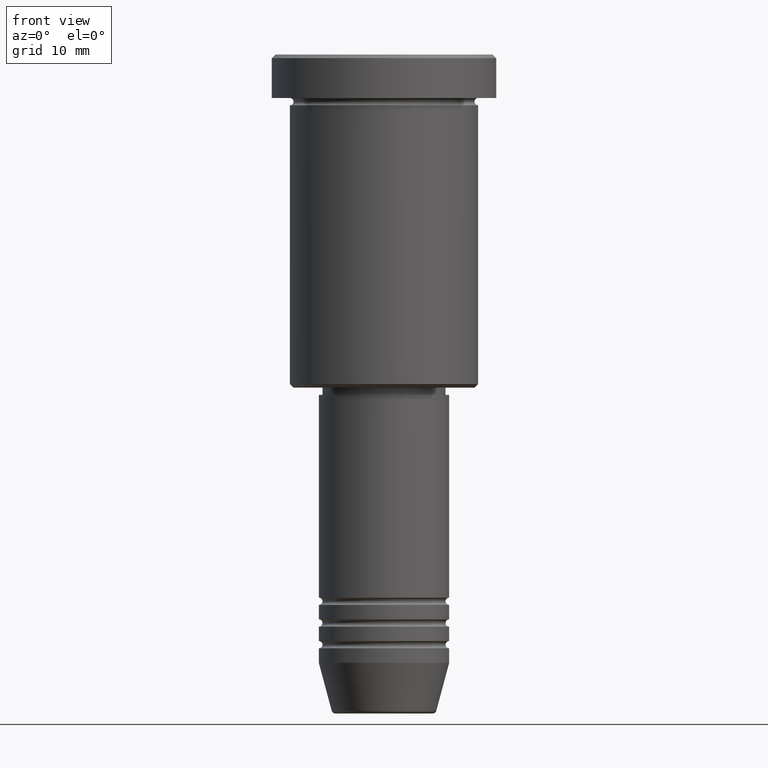
[diagram: clean part render]
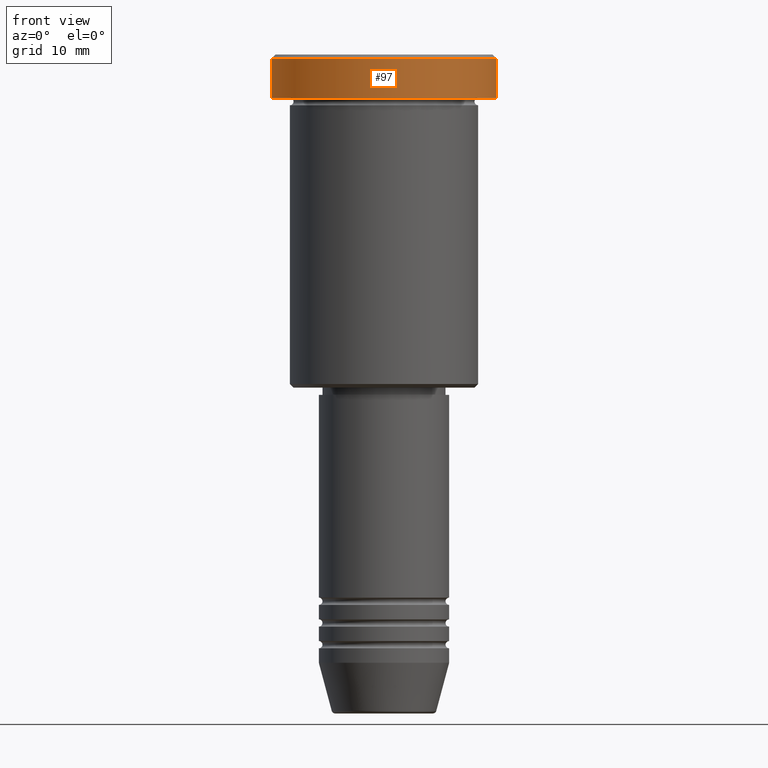
[diagram: same view with one face highlighted and labeled with its STEP entity id]
A machine part, front view. The second image highlights one B-rep face of the part: STEP entity #97.
In plain terms, the highlighted cylindrical surface (partial cylindrical patch) has radius 15.5 mm, axis along (-0, -0, 1).
Its self-contained STEP definition (entity closure, byte-faithful):
#33 = DIRECTION ( 'NONE',  ( 1.000000000000000000, 0.000000000000000000, 0.000000000000000000 ) ) ;
#42 = DIRECTION ( 'NONE',  ( -0.000000000000000000, -0.000000000000000000, 1.000000000000000000 ) ) ;
#43 = ORIENTED_EDGE ( 'NONE', *, *, #1177, .T. ) ;
#97 = ADVANCED_FACE ( 'NONE', ( #864 ), #500, .T. ) ;
#100 = AXIS2_PLACEMENT_3D ( 'NONE', #607, #971, #974 ) ;
#123 = AXIS2_PLACEMENT_3D ( 'NONE', #723, #533, #609 ) ;
#163 = VERTEX_POINT ( 'NONE', #1141 ) ;
#167 = DIRECTION ( 'NONE',  ( -0.000000000000000000, -0.000000000000000000, 1.000000000000000000 ) ) ;
#177 = LINE ( 'NONE', #903, #636 ) ;
#271 = CARTESIAN_POINT ( 'NONE',  ( -15.50000000000000000, 1.898202538678397557E-15, -5.999999999999995559 ) ) ;
#284 = ORIENTED_EDGE ( 'NONE', *, *, #913, .T. ) ;
#336 = EDGE_CURVE ( 'NONE', #938, #1078, #177, .T. ) ;
#352 = EDGE_CURVE ( 'NONE', #748, #1078, #925, .T. ) ;
#435 = CARTESIAN_POINT ( 'NONE',  ( 15.50000000000000000, 0.000000000000000000, 0.000000000000000000 ) ) ;
#494 = CARTESIAN_POINT ( 'NONE',  ( -15.50000000000000000, 1.898202538678397557E-15, -0.4999999999999987232 ) ) ;
#500 = CYLINDRICAL_SURFACE ( 'NONE', #881, 15.50000000000000000 ) ;
#510 = DIRECTION ( 'NONE',  ( -0.000000000000000000, -0.000000000000000000, 1.000000000000000000 ) ) ;
#517 = LINE ( 'NONE', #435, #1134 ) ;
#533 = DIRECTION ( 'NONE',  ( 0.000000000000000000, 0.000000000000000000, -1.000000000000000000 ) ) ;
#607 = CARTESIAN_POINT ( 'NONE',  ( 0.000000000000000000, 0.000000000000000000, -5.999999999999995559 ) ) ;
#609 = DIRECTION ( 'NONE',  ( 1.000000000000000000, 0.000000000000000000, 0.000000000000000000 ) ) ;
#636 = VECTOR ( 'NONE', #167, 1000.000000000000000 ) ;
#723 = CARTESIAN_POINT ( 'NONE',  ( 0.000000000000000000, 0.000000000000000000, -0.4999999999999987232 ) ) ;
#748 = VERTEX_POINT ( 'NONE', #1145 ) ;
#864 = FACE_OUTER_BOUND ( 'NONE', #1060, .T. ) ;
#879 = ORIENTED_EDGE ( 'NONE', *, *, #352, .T. ) ;
#881 = AXIS2_PLACEMENT_3D ( 'NONE', #965, #42, #33 ) ;
#903 = CARTESIAN_POINT ( 'NONE',  ( -15.50000000000000000, 1.898202538678397557E-15, 0.000000000000000000 ) ) ;
#913 = EDGE_CURVE ( 'NONE', #938, #163, #1158, .T. ) ;
#925 = CIRCLE ( 'NONE', #123, 15.50000000000000000 ) ;
#938 = VERTEX_POINT ( 'NONE', #271 ) ;
#965 = CARTESIAN_POINT ( 'NONE',  ( 0.000000000000000000, 0.000000000000000000, 0.000000000000000000 ) ) ;
#971 = DIRECTION ( 'NONE',  ( -0.000000000000000000, -0.000000000000000000, 1.000000000000000000 ) ) ;
#974 = DIRECTION ( 'NONE',  ( 1.000000000000000000, 0.000000000000000000, 0.000000000000000000 ) ) ;
#1060 = EDGE_LOOP ( 'NONE', ( #1161, #284, #43, #879 ) ) ;
#1078 = VERTEX_POINT ( 'NONE', #494 ) ;
#1134 = VECTOR ( 'NONE', #510, 1000.000000000000000 ) ;
#1141 = CARTESIAN_POINT ( 'NONE',  ( 15.50000000000000000, 0.000000000000000000, -5.999999999999995559 ) ) ;
#1145 = CARTESIAN_POINT ( 'NONE',  ( 15.50000000000000000, 0.000000000000000000, -0.4999999999999987232 ) ) ;
#1158 = CIRCLE ( 'NONE', #100, 15.50000000000000000 ) ;
#1161 = ORIENTED_EDGE ( 'NONE', *, *, #336, .F. ) ;
#1177 = EDGE_CURVE ( 'NONE', #163, #748, #517, .T. ) ;